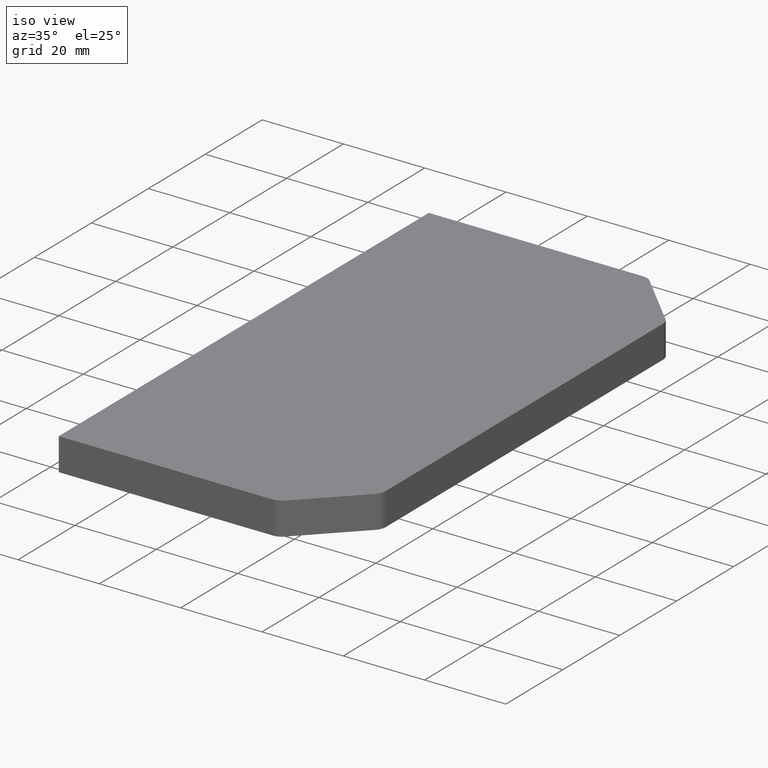
[diagram: clean part render]
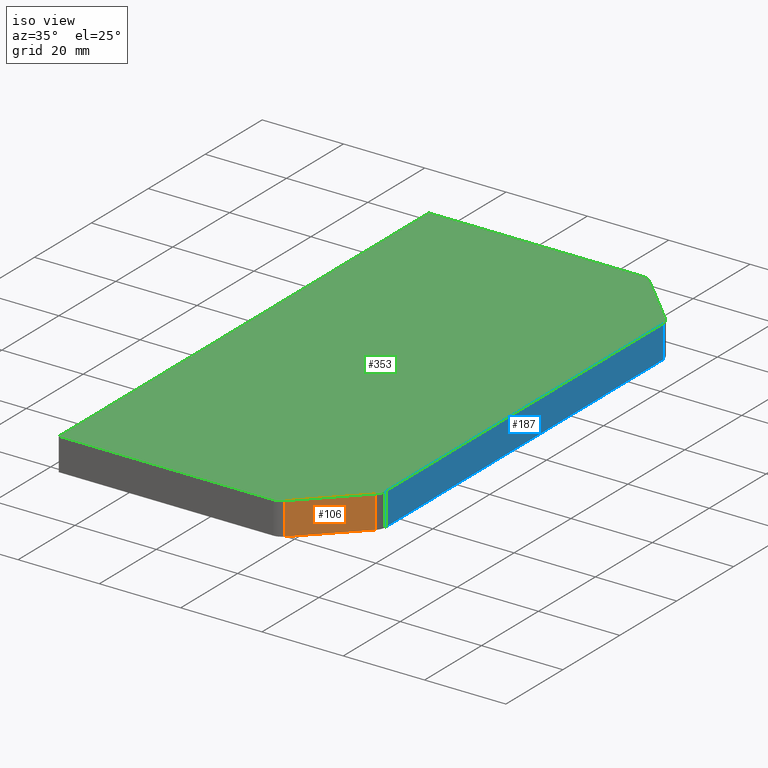
[diagram: same view with three faces highlighted in distinct colors, each labeled with its STEP entity id]
A machine part, iso view with three faces highlighted in distinct colors.
Their STEP definitions:

[orange] entity #106 — the highlighted planar face has unit normal (-0.7071, 0.7071, -0).
#6 = DIRECTION ( 'NONE',  ( -0.7071067811865489050, 0.7071067811865462405, -0.000000000000000000 ) ) ;
#25 = CARTESIAN_POINT ( 'NONE',  ( 33.62132034355964549, -50.87867965644029056, -8.000000000000000000 ) ) ;
#26 = LINE ( 'NONE', #225, #114 ) ;
#42 = ORIENTED_EDGE ( 'NONE', *, *, #80, .T. ) ;
#43 = DIRECTION ( 'NONE',  ( -0.000000000000000000, 0.000000000000000000, 1.000000000000000000 ) ) ;
#80 = EDGE_CURVE ( 'NONE', #348, #350, #305, .T. ) ;
#82 = ORIENTED_EDGE ( 'NONE', *, *, #395, .F. ) ;
#95 = VECTOR ( 'NONE', #380, 1000.000000000000000 ) ;
#106 = ADVANCED_FACE ( 'NONE', ( #269 ), #144, .F. ) ;
#107 = CARTESIAN_POINT ( 'NONE',  ( 19.49999999999996803, -65.00000000000001421, -8.000000000000000000 ) ) ;
#114 = VECTOR ( 'NONE', #404, 1000.000000000000000 ) ;
#130 = CARTESIAN_POINT ( 'NONE',  ( 33.62132034355964549, -50.87867965644029056, 0.000000000000000000 ) ) ;
#139 = LINE ( 'NONE', #274, #410 ) ;
#140 = LINE ( 'NONE', #413, #95 ) ;
#144 = PLANE ( 'NONE',  #208 ) ;
#153 = ORIENTED_EDGE ( 'NONE', *, *, #429, .F. ) ;
#174 = VERTEX_POINT ( 'NONE', #219 ) ;
#204 = ORIENTED_EDGE ( 'NONE', *, *, #222, .T. ) ;
#208 = AXIS2_PLACEMENT_3D ( 'NONE', #107, #6, #43 ) ;
#219 = CARTESIAN_POINT ( 'NONE',  ( 20.37867965644033319, -64.12132034355964549, 0.000000000000000000 ) ) ;
#222 = EDGE_CURVE ( 'NONE', #174, #239, #139, .T. ) ;
#225 = CARTESIAN_POINT ( 'NONE',  ( 42.25000000000002132, -42.24999999999986500, -8.000000000000000000 ) ) ;
#239 = VERTEX_POINT ( 'NONE', #341 ) ;
#251 = EDGE_LOOP ( 'NONE', ( #153, #42, #82, #204 ) ) ;
#265 = CARTESIAN_POINT ( 'NONE',  ( 33.62132034355963839, -50.87867965644029056, -8.000000000000000000 ) ) ;
#269 = FACE_OUTER_BOUND ( 'NONE', #251, .T. ) ;
#274 = CARTESIAN_POINT ( 'NONE',  ( 20.37867965644033319, -64.12132034355964549, -8.000000000000000000 ) ) ;
#301 = VECTOR ( 'NONE', #342, 1000.000000000000000 ) ;
#305 = LINE ( 'NONE', #25, #301 ) ;
#341 = CARTESIAN_POINT ( 'NONE',  ( 20.37867965644032608, -64.12132034355964549, -8.000000000000000000 ) ) ;
#342 = DIRECTION ( 'NONE',  ( -0.000000000000000000, 0.000000000000000000, 1.000000000000000000 ) ) ;
#348 = VERTEX_POINT ( 'NONE', #265 ) ;
#350 = VERTEX_POINT ( 'NONE', #130 ) ;
#368 = DIRECTION ( 'NONE',  ( -0.000000000000000000, -0.000000000000000000, -1.000000000000000000 ) ) ;
#380 = DIRECTION ( 'NONE',  ( 0.7071067811865462405, 0.7071067811865489050, -0.000000000000000000 ) ) ;
#395 = EDGE_CURVE ( 'NONE', #174, #350, #140, .T. ) ;
#404 = DIRECTION ( 'NONE',  ( -0.7071067811865462405, -0.7071067811865489050, -0.000000000000000000 ) ) ;
#410 = VECTOR ( 'NONE', #368, 1000.000000000000000 ) ;
#413 = CARTESIAN_POINT ( 'NONE',  ( 19.49999999999996803, -65.00000000000001421, 0.000000000000000000 ) ) ;
#429 = EDGE_CURVE ( 'NONE', #348, #239, #26, .T. ) ;

[blue] entity #187 — the highlighted planar face has unit normal (1, 0, 0).
#23 = EDGE_LOOP ( 'NONE', ( #344, #387, #443, #409 ) ) ;
#46 = VECTOR ( 'NONE', #312, 1000.000000000000000 ) ;
#64 = VECTOR ( 'NONE', #314, 1000.000000000000000 ) ;
#87 = CARTESIAN_POINT ( 'NONE',  ( 34.49999999999999289, -48.75735931288065217, -8.000000000000000000 ) ) ;
#90 = CARTESIAN_POINT ( 'NONE',  ( 34.49999999999999289, -65.00000000000001421, -8.000000000000000000 ) ) ;
#97 = VERTEX_POINT ( 'NONE', #400 ) ;
#111 = VECTOR ( 'NONE', #390, 1000.000000000000000 ) ;
#118 = LINE ( 'NONE', #293, #111 ) ;
#132 = DIRECTION ( 'NONE',  ( 0.000000000000000000, 1.000000000000000000, 0.000000000000000000 ) ) ;
#162 = DIRECTION ( 'NONE',  ( 1.000000000000000000, 0.000000000000000000, 0.000000000000000000 ) ) ;
#163 = VERTEX_POINT ( 'NONE', #320 ) ;
#168 = EDGE_CURVE ( 'NONE', #97, #163, #118, .T. ) ;
#171 = DIRECTION ( 'NONE',  ( 0.000000000000000000, 0.000000000000000000, -1.000000000000000000 ) ) ;
#187 = ADVANCED_FACE ( 'NONE', ( #324 ), #394, .T. ) ;
#212 = CARTESIAN_POINT ( 'NONE',  ( 34.49999999999999289, 48.75735931288068059, -8.000000000000000000 ) ) ;
#231 = CARTESIAN_POINT ( 'NONE',  ( 34.49999999999999289, -65.00000000000001421, -8.000000000000000000 ) ) ;
#243 = EDGE_CURVE ( 'NONE', #97, #416, #245, .T. ) ;
#245 = LINE ( 'NONE', #279, #46 ) ;
#247 = EDGE_CURVE ( 'NONE', #284, #163, #383, .T. ) ;
#258 = LINE ( 'NONE', #231, #296 ) ;
#279 = CARTESIAN_POINT ( 'NONE',  ( 34.49999999999999289, -48.75735931288065217, -8.000000000000000000 ) ) ;
#284 = VERTEX_POINT ( 'NONE', #346 ) ;
#293 = CARTESIAN_POINT ( 'NONE',  ( 34.49999999999999289, -65.00000000000001421, 0.000000000000000000 ) ) ;
#296 = VECTOR ( 'NONE', #132, 1000.000000000000000 ) ;
#312 = DIRECTION ( 'NONE',  ( -0.000000000000000000, -0.000000000000000000, -1.000000000000000000 ) ) ;
#314 = DIRECTION ( 'NONE',  ( -0.000000000000000000, -0.000000000000000000, 1.000000000000000000 ) ) ;
#320 = CARTESIAN_POINT ( 'NONE',  ( 34.49999999999999289, 48.75735931288068059, 0.000000000000000000 ) ) ;
#324 = FACE_OUTER_BOUND ( 'NONE', #23, .T. ) ;
#344 = ORIENTED_EDGE ( 'NONE', *, *, #347, .T. ) ;
#346 = CARTESIAN_POINT ( 'NONE',  ( 34.49999999999999289, 48.75735931288068059, -8.000000000000000000 ) ) ;
#347 = EDGE_CURVE ( 'NONE', #416, #284, #258, .T. ) ;
#363 = AXIS2_PLACEMENT_3D ( 'NONE', #90, #162, #171 ) ;
#383 = LINE ( 'NONE', #212, #64 ) ;
#387 = ORIENTED_EDGE ( 'NONE', *, *, #247, .T. ) ;
#390 = DIRECTION ( 'NONE',  ( 0.000000000000000000, 1.000000000000000000, 0.000000000000000000 ) ) ;
#394 = PLANE ( 'NONE',  #363 ) ;
#400 = CARTESIAN_POINT ( 'NONE',  ( 34.49999999999999289, -48.75735931288065217, 0.000000000000000000 ) ) ;
#409 = ORIENTED_EDGE ( 'NONE', *, *, #243, .T. ) ;
#416 = VERTEX_POINT ( 'NONE', #87 ) ;
#443 = ORIENTED_EDGE ( 'NONE', *, *, #168, .F. ) ;

[green] entity #353 — the highlighted planar face has unit normal (0, 0, -1).
#3 = EDGE_CURVE ( 'NONE', #163, #119, #382, .T. ) ;
#4 = DIRECTION ( 'NONE',  ( -0.000000000000000000, -0.000000000000000000, 1.000000000000000000 ) ) ;
#5 = DIRECTION ( 'NONE',  ( -0.7071067811865489050, 0.7071067811865462405, -0.000000000000000000 ) ) ;
#11 = CARTESIAN_POINT ( 'NONE',  ( 33.62132034355963839, 50.87867965644032608, 0.000000000000000000 ) ) ;
#12 = CARTESIAN_POINT ( 'NONE',  ( -34.50000000000000711, 64.99999999999998579, 0.000000000000000000 ) ) ;
#14 = DIRECTION ( 'NONE',  ( -0.000000000000000000, -0.000000000000000000, 1.000000000000000000 ) ) ;
#16 = EDGE_CURVE ( 'NONE', #20, #131, #291, .T. ) ;
#20 = VERTEX_POINT ( 'NONE', #288 ) ;
#22 = AXIS2_PLACEMENT_3D ( 'NONE', #249, #14, #358 ) ;
#27 = FACE_OUTER_BOUND ( 'NONE', #100, .T. ) ;
#28 = ORIENTED_EDGE ( 'NONE', *, *, #406, .T. ) ;
#33 = EDGE_CURVE ( 'NONE', #297, #20, #70, .T. ) ;
#35 = VECTOR ( 'NONE', #5, 1000.000000000000000 ) ;
#39 = DIRECTION ( 'NONE',  ( -1.000000000000000000, 0.000000000000000000, 0.000000000000000000 ) ) ;
#63 = ORIENTED_EDGE ( 'NONE', *, *, #202, .T. ) ;
#66 = ORIENTED_EDGE ( 'NONE', *, *, #16, .T. ) ;
#70 = CIRCLE ( 'NONE', #22, 2.999999999999999112 ) ;
#79 = ORIENTED_EDGE ( 'NONE', *, *, #395, .T. ) ;
#94 = DIRECTION ( 'NONE',  ( -0.000000000000000000, -0.000000000000000000, 1.000000000000000000 ) ) ;
#95 = VECTOR ( 'NONE', #380, 1000.000000000000000 ) ;
#97 = VERTEX_POINT ( 'NONE', #400 ) ;
#100 = EDGE_LOOP ( 'NONE', ( #425, #149, #66, #337, #28, #63, #79, #112, #156, #373 ) ) ;
#103 = AXIS2_PLACEMENT_3D ( 'NONE', #271, #402, #229 ) ;
#111 = VECTOR ( 'NONE', #390, 1000.000000000000000 ) ;
#112 = ORIENTED_EDGE ( 'NONE', *, *, #117, .T. ) ;
#117 = EDGE_CURVE ( 'NONE', #350, #97, #255, .T. ) ;
#118 = LINE ( 'NONE', #293, #111 ) ;
#119 = VERTEX_POINT ( 'NONE', #11 ) ;
#121 = LINE ( 'NONE', #152, #201 ) ;
#125 = CARTESIAN_POINT ( 'NONE',  ( -34.50000000000000711, -65.00000000000001421, 0.000000000000000000 ) ) ;
#130 = CARTESIAN_POINT ( 'NONE',  ( 33.62132034355964549, -50.87867965644029056, 0.000000000000000000 ) ) ;
#131 = VERTEX_POINT ( 'NONE', #420 ) ;
#133 = DIRECTION ( 'NONE',  ( -0.000000000000000000, -1.000000000000000000, -0.000000000000000000 ) ) ;
#140 = LINE ( 'NONE', #413, #95 ) ;
#145 = AXIS2_PLACEMENT_3D ( 'NONE', #147, #4, #242 ) ;
#146 = VERTEX_POINT ( 'NONE', #125 ) ;
#147 = CARTESIAN_POINT ( 'NONE',  ( 31.49999999999999289, 48.75735931288068059, 0.000000000000000000 ) ) ;
#149 = ORIENTED_EDGE ( 'NONE', *, *, #33, .T. ) ;
#151 = CARTESIAN_POINT ( 'NONE',  ( 31.49999999999999289, -48.75735931288065217, 0.000000000000000000 ) ) ;
#152 = CARTESIAN_POINT ( 'NONE',  ( -34.50000000000000711, -65.00000000000001421, 0.000000000000000000 ) ) ;
#156 = ORIENTED_EDGE ( 'NONE', *, *, #168, .T. ) ;
#163 = VERTEX_POINT ( 'NONE', #320 ) ;
#168 = EDGE_CURVE ( 'NONE', #97, #163, #118, .T. ) ;
#174 = VERTEX_POINT ( 'NONE', #219 ) ;
#185 = AXIS2_PLACEMENT_3D ( 'NONE', #267, #94, #439 ) ;
#194 = AXIS2_PLACEMENT_3D ( 'NONE', #151, #414, #39 ) ;
#201 = VECTOR ( 'NONE', #133, 1000.000000000000000 ) ;
#202 = EDGE_CURVE ( 'NONE', #329, #174, #282, .T. ) ;
#211 = LINE ( 'NONE', #352, #441 ) ;
#218 = DIRECTION ( 'NONE',  ( -1.000000000000000000, -0.000000000000000000, -0.000000000000000000 ) ) ;
#219 = CARTESIAN_POINT ( 'NONE',  ( 20.37867965644033319, -64.12132034355964549, 0.000000000000000000 ) ) ;
#229 = DIRECTION ( 'NONE',  ( -1.000000000000000000, 0.000000000000000000, -0.000000000000000000 ) ) ;
#240 = CARTESIAN_POINT ( 'NONE',  ( 34.49999999999999289, 49.99999999999997158, 0.000000000000000000 ) ) ;
#242 = DIRECTION ( 'NONE',  ( -1.000000000000000000, 0.000000000000000000, 0.000000000000000000 ) ) ;
#249 = CARTESIAN_POINT ( 'NONE',  ( 18.25735931288064506, 61.99999999999998579, 0.000000000000000000 ) ) ;
#255 = CIRCLE ( 'NONE', #194, 2.999999999999999112 ) ;
#262 = CARTESIAN_POINT ( 'NONE',  ( 18.25735931288068059, -65.00000000000001421, 0.000000000000000000 ) ) ;
#267 = CARTESIAN_POINT ( 'NONE',  ( 18.25735931288068059, -62.00000000000001421, 0.000000000000000000 ) ) ;
#271 = CARTESIAN_POINT ( 'NONE',  ( 0.000000000000000000, 0.000000000000000000, 0.000000000000000000 ) ) ;
#276 = LINE ( 'NONE', #240, #35 ) ;
#282 = CIRCLE ( 'NONE', #185, 2.999999999999999112 ) ;
#285 = DIRECTION ( 'NONE',  ( 1.000000000000000000, 0.000000000000000000, 0.000000000000000000 ) ) ;
#288 = CARTESIAN_POINT ( 'NONE',  ( 18.25735931288064506, 64.99999999999998579, 0.000000000000000000 ) ) ;
#289 = CARTESIAN_POINT ( 'NONE',  ( 20.37867965644027990, 64.12132034355963128, 0.000000000000000000 ) ) ;
#291 = LINE ( 'NONE', #12, #339 ) ;
#292 = EDGE_CURVE ( 'NONE', #119, #297, #276, .T. ) ;
#293 = CARTESIAN_POINT ( 'NONE',  ( 34.49999999999999289, -65.00000000000001421, 0.000000000000000000 ) ) ;
#297 = VERTEX_POINT ( 'NONE', #289 ) ;
#320 = CARTESIAN_POINT ( 'NONE',  ( 34.49999999999999289, 48.75735931288068059, 0.000000000000000000 ) ) ;
#329 = VERTEX_POINT ( 'NONE', #262 ) ;
#333 = PLANE ( 'NONE',  #103 ) ;
#337 = ORIENTED_EDGE ( 'NONE', *, *, #428, .T. ) ;
#339 = VECTOR ( 'NONE', #218, 1000.000000000000000 ) ;
#350 = VERTEX_POINT ( 'NONE', #130 ) ;
#352 = CARTESIAN_POINT ( 'NONE',  ( -34.50000000000000711, -65.00000000000001421, 0.000000000000000000 ) ) ;
#353 = ADVANCED_FACE ( 'NONE', ( #27 ), #333, .F. ) ;
#358 = DIRECTION ( 'NONE',  ( -1.000000000000000000, 0.000000000000000000, 0.000000000000000000 ) ) ;
#373 = ORIENTED_EDGE ( 'NONE', *, *, #3, .T. ) ;
#380 = DIRECTION ( 'NONE',  ( 0.7071067811865462405, 0.7071067811865489050, -0.000000000000000000 ) ) ;
#382 = CIRCLE ( 'NONE', #145, 2.999999999999999112 ) ;
#390 = DIRECTION ( 'NONE',  ( 0.000000000000000000, 1.000000000000000000, 0.000000000000000000 ) ) ;
#395 = EDGE_CURVE ( 'NONE', #174, #350, #140, .T. ) ;
#400 = CARTESIAN_POINT ( 'NONE',  ( 34.49999999999999289, -48.75735931288065217, 0.000000000000000000 ) ) ;
#402 = DIRECTION ( 'NONE',  ( 0.000000000000000000, 0.000000000000000000, -1.000000000000000000 ) ) ;
#406 = EDGE_CURVE ( 'NONE', #146, #329, #211, .T. ) ;
#413 = CARTESIAN_POINT ( 'NONE',  ( 19.49999999999996803, -65.00000000000001421, 0.000000000000000000 ) ) ;
#414 = DIRECTION ( 'NONE',  ( -0.000000000000000000, -0.000000000000000000, 1.000000000000000000 ) ) ;
#420 = CARTESIAN_POINT ( 'NONE',  ( -34.50000000000000711, 64.99999999999998579, 0.000000000000000000 ) ) ;
#425 = ORIENTED_EDGE ( 'NONE', *, *, #292, .T. ) ;
#428 = EDGE_CURVE ( 'NONE', #131, #146, #121, .T. ) ;
#439 = DIRECTION ( 'NONE',  ( -1.000000000000000000, 0.000000000000000000, 0.000000000000000000 ) ) ;
#441 = VECTOR ( 'NONE', #285, 1000.000000000000000 ) ;